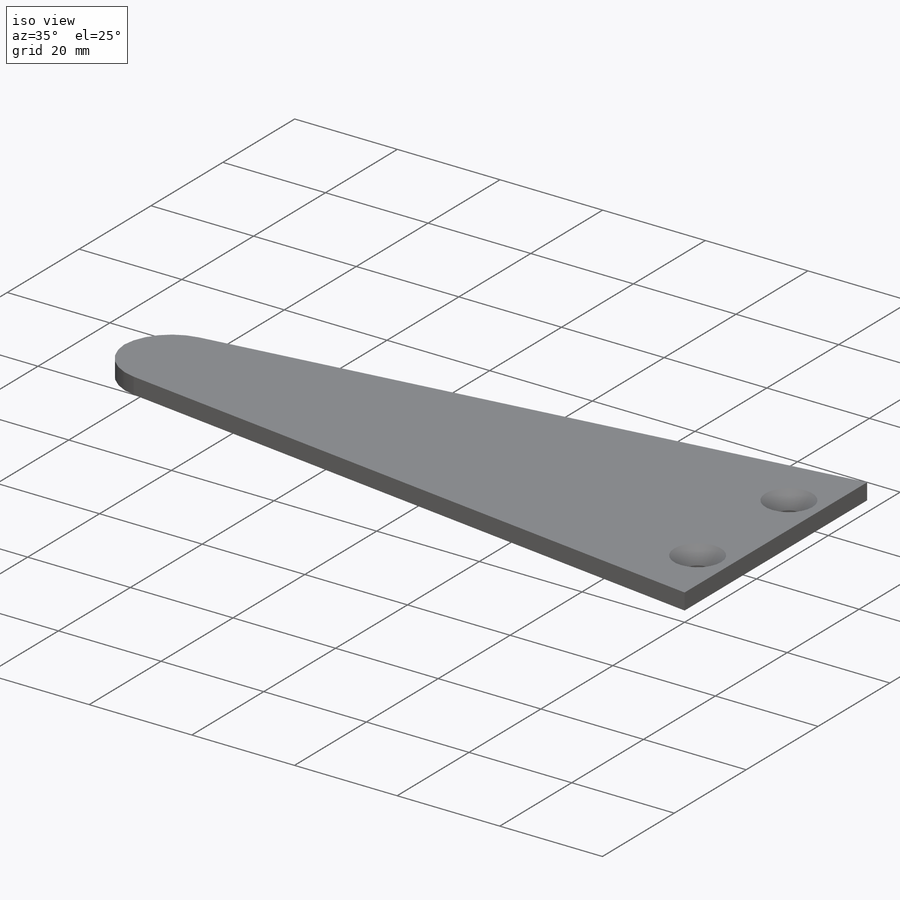
[diagram: iso view]
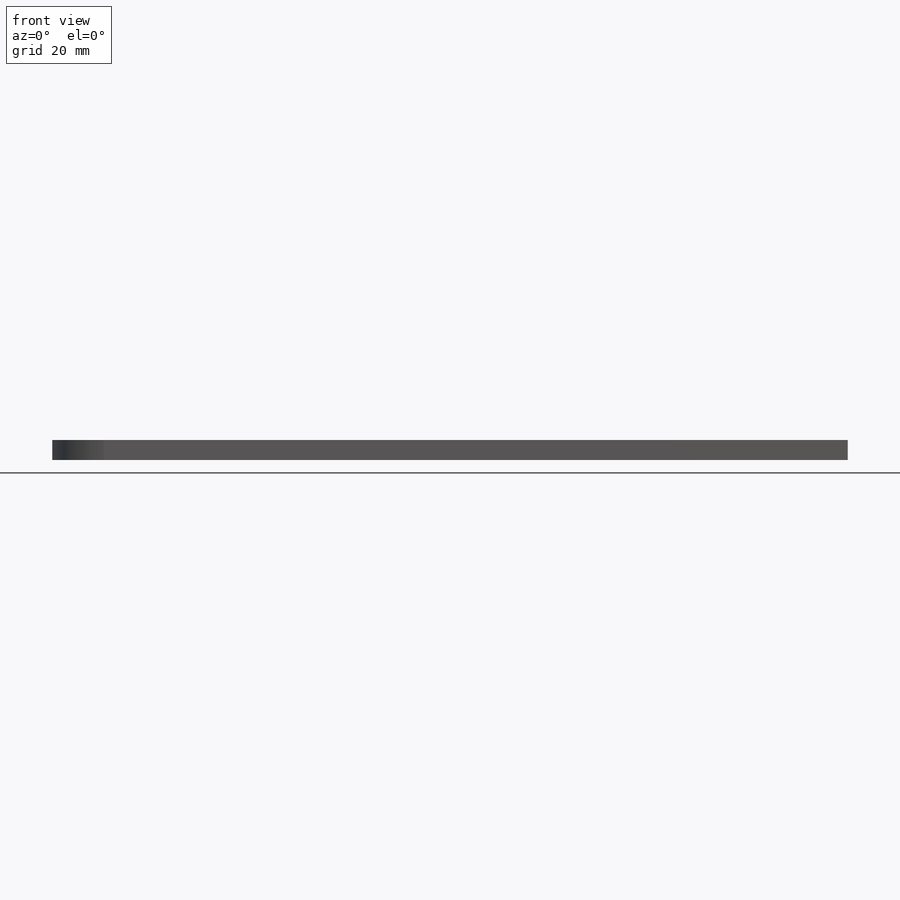
[diagram: front view]
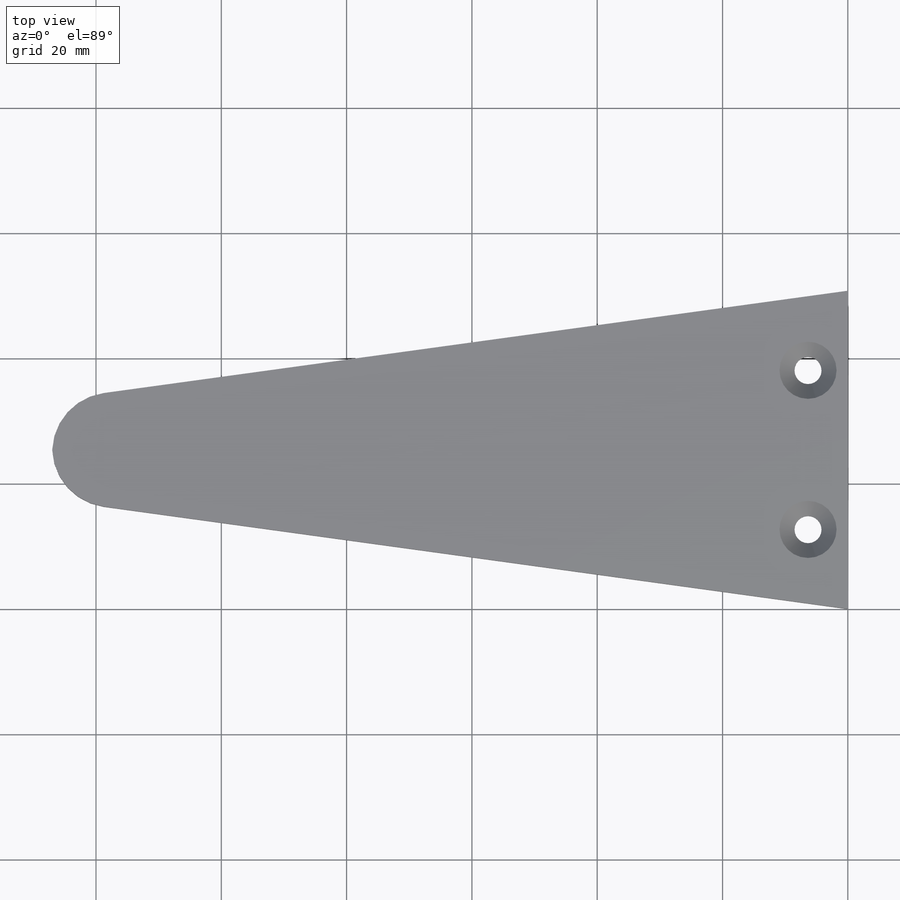
[diagram: top view]
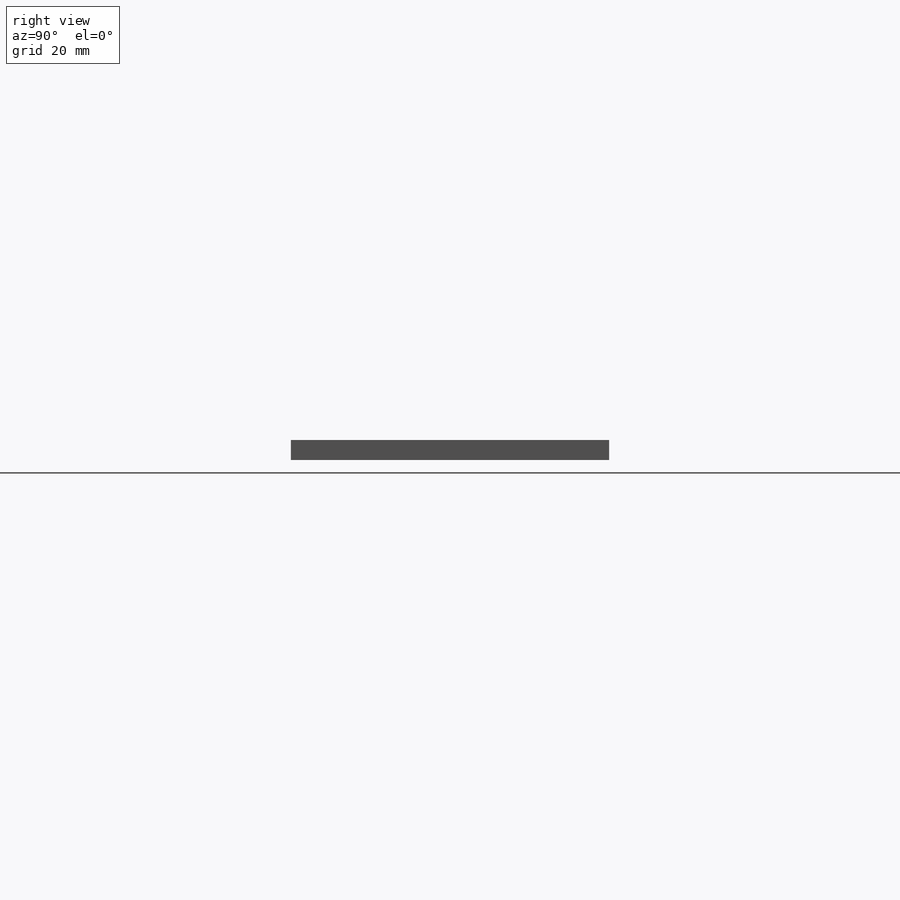
[diagram: right view]
SOLIDWORKS PART (.sldprt)
format: sldprt  version: not decoded by parser v0  size: 166,912 bytes
history: native  units: mm
features: sketch x3, material x1, extrude x1, hole x1, fillet x1 (+12 scaffold rows collapsed)
feature tree (19):
  scaffold x12  (default folders/planes/origin — collapsed)
  material  "Acrylic (Medium-high impact)"
  sketch  "Sketch1"  dims[D1=127.0mm D2=50.8mm D3=15.875mm]
  extrude  "Boss-Extrude1"  Depth=3.175mm
  hole  "CSK for #8 Flat Head Socket Cap Screw1"  Diameter=4.3053mm Depth=3.175mm
  sketch  "Sketch3"  dims[D1=12.7mm D2=6.35mm]
  sketch  "Sketch2"  dims[hole-wizard template sketch: 55 standard entries collapsed; hole parameters kept: c17.Thru Hole Depth=3.175mm c17.Near C'Sink Dia.=9.1186mm c17.D4=~3.666174mm c17.Near C'Sink Angle=82.0deg]
  fillet  "Fillet1"  Radius=9.525mm
decode coverage: 6 of 6 modeling features carry decoded parameters
note: ~ marks probable driven/reference dimensions
note: suppression state not decoded; provenance and decode notes live in map.json
